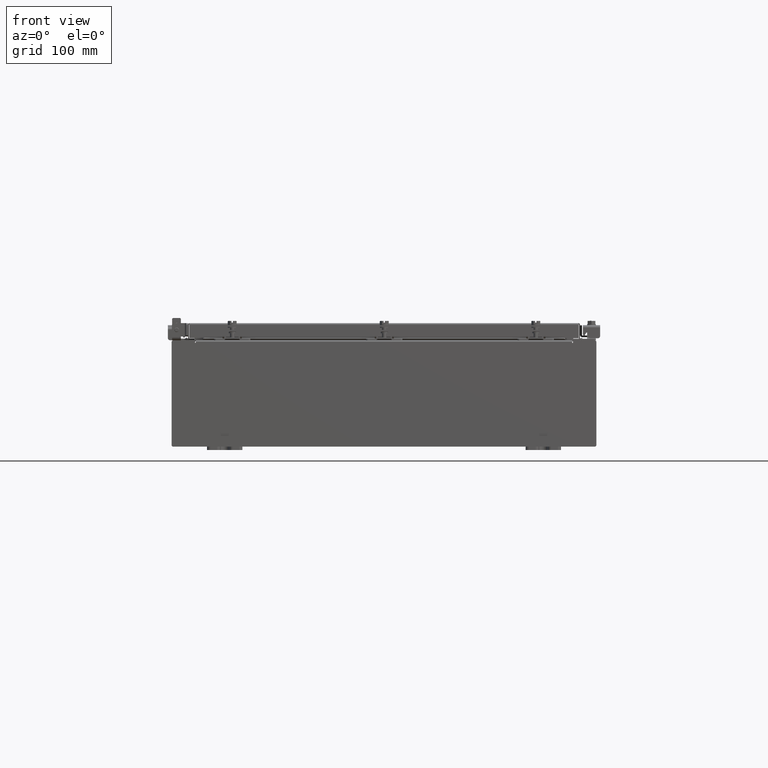
[diagram: clean part render]
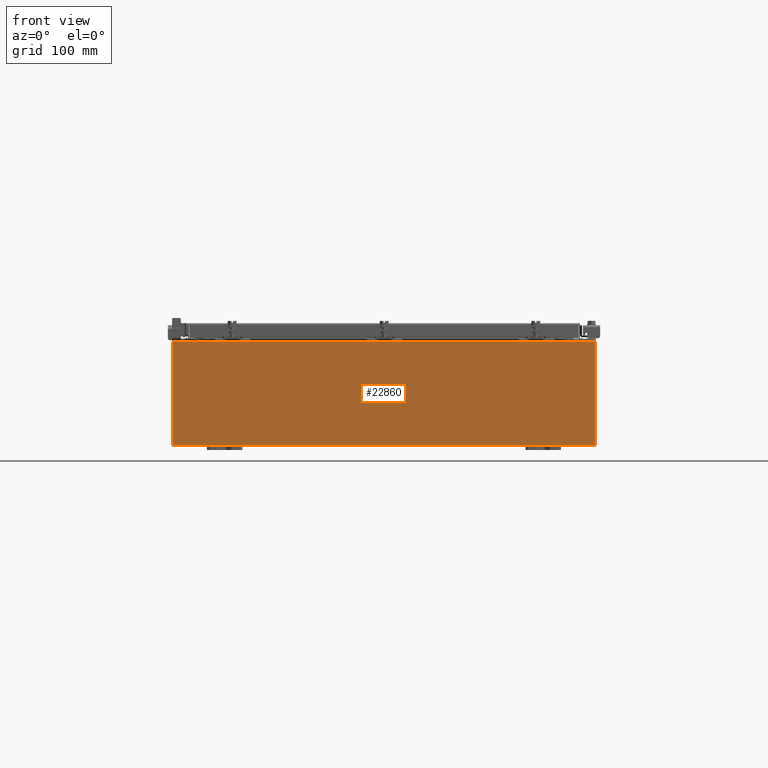
[diagram: same view with one face highlighted and labeled with its STEP entity id]
A machine part, front view. The second image highlights one B-rep face of the part: STEP entity #22860.
In plain terms, the highlighted planar face has unit normal (-0, 1, -0).
Its self-contained STEP definition (entity closure, byte-faithful):
#12 = CIRCLE ( 'NONE', #477, 0.01867499999999949400 ) ;
#119 = ORIENTED_EDGE ( 'NONE', *, *, #17597, .T. ) ;
#360 = EDGE_CURVE ( 'NONE', #14375, #10283, #20620, .T. ) ;
#477 = AXIS2_PLACEMENT_3D ( 'NONE', #4341, #16827, #6102 ) ;
#809 = CARTESIAN_POINT ( 'NONE',  ( -10.63720000000000400, -0.0000000000000000000, 2.874950000000000600 ) ) ;
#912 = EDGE_CURVE ( 'NONE', #14375, #13350, #16916, .T. ) ;
#1149 = EDGE_CURVE ( 'NONE', #6031, #5620, #7100, .T. ) ;
#1518 = CARTESIAN_POINT ( 'NONE',  ( -11.92530000000000000, 0.0000000000000000000, -2.925299999999999600 ) ) ;
#2051 = CARTESIAN_POINT ( 'NONE',  ( -11.92530000000000000, 0.0000000000000000000, 2.925300000000000500 ) ) ;
#2227 = DIRECTION ( 'NONE',  ( 1.000000000000000000, 0.0000000000000000000, 0.0000000000000000000 ) ) ;
#2391 = ORIENTED_EDGE ( 'NONE', *, *, #1149, .F. ) ;
#2520 = CARTESIAN_POINT ( 'NONE',  ( -11.92530000000000000, 0.0000000000000000000, 2.925300000000000500 ) ) ;
#2775 = CARTESIAN_POINT ( 'NONE',  ( -10.63720000000000400, 1.024442997624098700E-016, 2.912300000000000600 ) ) ;
#2784 = ORIENTED_EDGE ( 'NONE', *, *, #912, .T. ) ;
#3219 = CARTESIAN_POINT ( 'NONE',  ( 11.92530000000000000, 0.0000000000000000000, 2.925300000000000500 ) ) ;
#4291 = CARTESIAN_POINT ( 'NONE',  ( -10.67455000000000200, -0.0000000000000000000, 0.0000000000000000000 ) ) ;
#4341 = CARTESIAN_POINT ( 'NONE',  ( 10.65587500000000200, 0.0000000000000000000, 2.874950000000000600 ) ) ;
#5102 = EDGE_CURVE ( 'NONE', #5761, #19570, #13736, .T. ) ;
#5330 = CARTESIAN_POINT ( 'NONE',  ( 0.0000000000000000000, 0.0000000000000000000, 0.0000000000000000000 ) ) ;
#5335 = LINE ( 'NONE', #1518, #18498 ) ;
#5434 = VERTEX_POINT ( 'NONE', #2051 ) ;
#5455 = VECTOR ( 'NONE', #21764, 39.37007874015748100 ) ;
#5593 = LINE ( 'NONE', #6815, #13449 ) ;
#5620 = VERTEX_POINT ( 'NONE', #5872 ) ;
#5705 = VERTEX_POINT ( 'NONE', #6112 ) ;
#5733 = ORIENTED_EDGE ( 'NONE', *, *, #7030, .T. ) ;
#5761 = VERTEX_POINT ( 'NONE', #809 ) ;
#5839 = DIRECTION ( 'NONE',  ( 1.000000000000000000, 0.0000000000000000000, 0.0000000000000000000 ) ) ;
#5872 = CARTESIAN_POINT ( 'NONE',  ( 10.63720000000000400, 0.0000000000000000000, 2.912300000000000600 ) ) ;
#6031 = VERTEX_POINT ( 'NONE', #15739 ) ;
#6102 = DIRECTION ( 'NONE',  ( 0.0000000000000000000, 0.0000000000000000000, -1.000000000000000000 ) ) ;
#6112 = CARTESIAN_POINT ( 'NONE',  ( -11.92530000000000000, 0.0000000000000000000, -2.925299999999999600 ) ) ;
#6486 = CARTESIAN_POINT ( 'NONE',  ( 10.67455000000000200, 0.0000000000000000000, 2.874950000000000600 ) ) ;
#6815 = CARTESIAN_POINT ( 'NONE',  ( -10.63720000000000400, -0.0000000000000000000, 0.0000000000000000000 ) ) ;
#6981 = ORIENTED_EDGE ( 'NONE', *, *, #17346, .T. ) ;
#7030 = EDGE_CURVE ( 'NONE', #14533, #5620, #22135, .T. ) ;
#7100 = LINE ( 'NONE', #15411, #20306 ) ;
#7117 = DIRECTION ( 'NONE',  ( 0.0000000000000000000, -0.0000000000000000000, -1.000000000000000000 ) ) ;
#7226 = EDGE_CURVE ( 'NONE', #14533, #5761, #5593, .T. ) ;
#7778 = ORIENTED_EDGE ( 'NONE', *, *, #7226, .F. ) ;
#7795 = LINE ( 'NONE', #9341, #21532 ) ;
#7866 = DIRECTION ( 'NONE',  ( 0.0000000000000000000, 0.0000000000000000000, 1.000000000000000000 ) ) ;
#8387 = CARTESIAN_POINT ( 'NONE',  ( -11.92530000000000000, 0.0000000000000000000, 2.925300000000000500 ) ) ;
#9341 = CARTESIAN_POINT ( 'NONE',  ( -11.92530000000000000, 0.0000000000000000000, 2.925300000000000500 ) ) ;
#10095 = ORIENTED_EDGE ( 'NONE', *, *, #10811, .F. ) ;
#10283 = VERTEX_POINT ( 'NONE', #6486 ) ;
#10411 = AXIS2_PLACEMENT_3D ( 'NONE', #15167, #15086, #15015 ) ;
#10513 = ORIENTED_EDGE ( 'NONE', *, *, #11740, .T. ) ;
#10619 = DIRECTION ( 'NONE',  ( -4.340572780400004900E-014, 0.0000000000000000000, -1.000000000000000000 ) ) ;
#10811 = EDGE_CURVE ( 'NONE', #19570, #21505, #16985, .T. ) ;
#11568 = VECTOR ( 'NONE', #2227, 39.37007874015748100 ) ;
#11740 = EDGE_CURVE ( 'NONE', #13350, #12451, #15539, .T. ) ;
#12223 = VECTOR ( 'NONE', #7866, 39.37007874015748100 ) ;
#12451 = VERTEX_POINT ( 'NONE', #20118 ) ;
#13009 = CARTESIAN_POINT ( 'NONE',  ( 10.67455000000000200, 0.0000000000000000000, 2.925300000000000500 ) ) ;
#13014 = AXIS2_PLACEMENT_3D ( 'NONE', #5330, #17855, #7117 ) ;
#13169 = VECTOR ( 'NONE', #15261, 39.37007874015748100 ) ;
#13350 = VERTEX_POINT ( 'NONE', #3219 ) ;
#13449 = VECTOR ( 'NONE', #17543, 39.37007874015748100 ) ;
#13736 = CIRCLE ( 'NONE', #10411, 0.01867499999999949400 ) ;
#14224 = PLANE ( 'NONE',  #13014 ) ;
#14348 = FACE_OUTER_BOUND ( 'NONE', #16858, .T. ) ;
#14375 = VERTEX_POINT ( 'NONE', #13009 ) ;
#14436 = ORIENTED_EDGE ( 'NONE', *, *, #18460, .T. ) ;
#14533 = VERTEX_POINT ( 'NONE', #20670 ) ;
#14550 = ORIENTED_EDGE ( 'NONE', *, *, #360, .F. ) ;
#15015 = DIRECTION ( 'NONE',  ( 0.0000000000000000000, 0.0000000000000000000, -1.000000000000000000 ) ) ;
#15066 = CARTESIAN_POINT ( 'NONE',  ( 10.67454999999987700, -0.0000000000000000000, -4.633366117301834200E-013 ) ) ;
#15086 = DIRECTION ( 'NONE',  ( -0.0000000000000000000, 1.000000000000000000, -0.0000000000000000000 ) ) ;
#15167 = CARTESIAN_POINT ( 'NONE',  ( -10.65587500000000200, 0.0000000000000000000, 2.874950000000000600 ) ) ;
#15261 = DIRECTION ( 'NONE',  ( 1.000000000000000000, 0.0000000000000000000, 0.0000000000000000000 ) ) ;
#15356 = CARTESIAN_POINT ( 'NONE',  ( -10.67455000000000200, 0.0000000000000000000, 2.874950000000000600 ) ) ;
#15411 = CARTESIAN_POINT ( 'NONE',  ( 10.63720000000000400, 0.0000000000000000000, 0.0000000000000000000 ) ) ;
#15539 = LINE ( 'NONE', #19984, #5455 ) ;
#15739 = CARTESIAN_POINT ( 'NONE',  ( 10.63720000000000400, 0.0000000000000000000, 2.874950000000000600 ) ) ;
#15819 = VECTOR ( 'NONE', #10619, 39.37007874015748100 ) ;
#16827 = DIRECTION ( 'NONE',  ( -0.0000000000000000000, 1.000000000000000000, -0.0000000000000000000 ) ) ;
#16858 = EDGE_LOOP ( 'NONE', ( #10095, #18676, #7778, #5733, #2391, #22955, #14550, #2784, #10513, #6981, #119, #14436 ) ) ;
#16916 = LINE ( 'NONE', #2520, #11568 ) ;
#16985 = LINE ( 'NONE', #4291, #12223 ) ;
#17346 = EDGE_CURVE ( 'NONE', #12451, #5705, #5335, .T. ) ;
#17543 = DIRECTION ( 'NONE',  ( 0.0000000000000000000, 0.0000000000000000000, -1.000000000000000000 ) ) ;
#17597 = EDGE_CURVE ( 'NONE', #5705, #5434, #18771, .T. ) ;
#17855 = DIRECTION ( 'NONE',  ( 0.0000000000000000000, -1.000000000000000000, 0.0000000000000000000 ) ) ;
#17866 = EDGE_CURVE ( 'NONE', #10283, #6031, #12, .T. ) ;
#18446 = CARTESIAN_POINT ( 'NONE',  ( -10.67455000000000200, 0.0000000000000000000, 2.925300000000000500 ) ) ;
#18460 = EDGE_CURVE ( 'NONE', #5434, #21505, #7795, .T. ) ;
#18498 = VECTOR ( 'NONE', #21182, 39.37007874015748100 ) ;
#18676 = ORIENTED_EDGE ( 'NONE', *, *, #5102, .F. ) ;
#18771 = LINE ( 'NONE', #8387, #19327 ) ;
#19116 = DIRECTION ( 'NONE',  ( -0.0000000000000000000, -0.0000000000000000000, 1.000000000000000000 ) ) ;
#19327 = VECTOR ( 'NONE', #19116, 39.37007874015748100 ) ;
#19570 = VERTEX_POINT ( 'NONE', #15356 ) ;
#19984 = CARTESIAN_POINT ( 'NONE',  ( 11.92530000000000000, 0.0000000000000000000, 2.925300000000000500 ) ) ;
#20118 = CARTESIAN_POINT ( 'NONE',  ( 11.92530000000000000, 0.0000000000000000000, -2.925299999999999600 ) ) ;
#20306 = VECTOR ( 'NONE', #22394, 39.37007874015748100 ) ;
#20620 = LINE ( 'NONE', #15066, #15819 ) ;
#20670 = CARTESIAN_POINT ( 'NONE',  ( -10.63720000000000400, 1.024442997624098700E-016, 2.912300000000000600 ) ) ;
#21182 = DIRECTION ( 'NONE',  ( -1.000000000000000000, -0.0000000000000000000, -0.0000000000000000000 ) ) ;
#21505 = VERTEX_POINT ( 'NONE', #18446 ) ;
#21532 = VECTOR ( 'NONE', #5839, 39.37007874015748100 ) ;
#21764 = DIRECTION ( 'NONE',  ( 0.0000000000000000000, 0.0000000000000000000, -1.000000000000000000 ) ) ;
#22135 = LINE ( 'NONE', #2775, #13169 ) ;
#22394 = DIRECTION ( 'NONE',  ( 0.0000000000000000000, 0.0000000000000000000, 1.000000000000000000 ) ) ;
#22860 = ADVANCED_FACE ( 'NONE', ( #14348 ), #14224, .F. ) ;
#22955 = ORIENTED_EDGE ( 'NONE', *, *, #17866, .F. ) ;